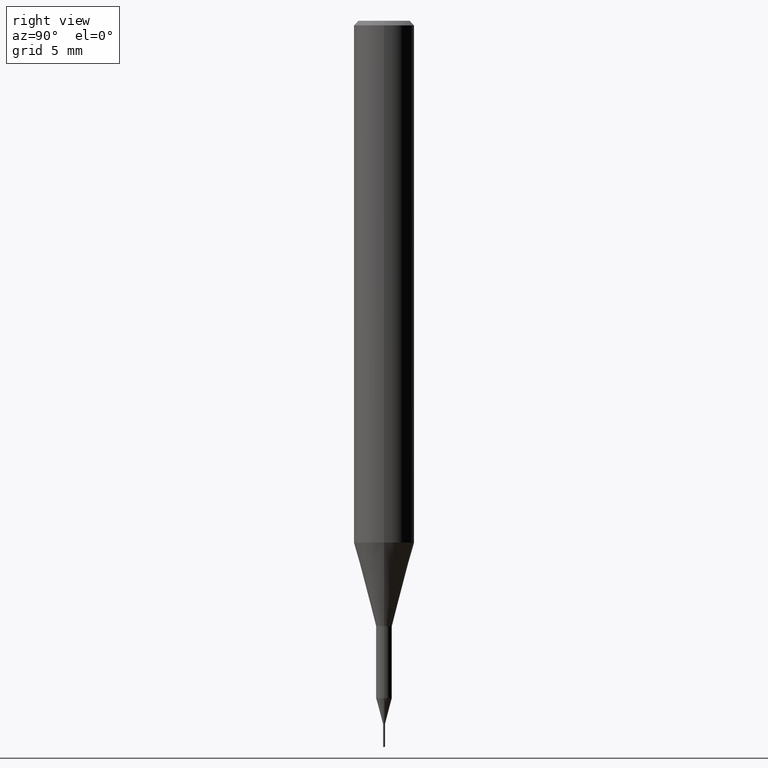
[diagram: clean part render]
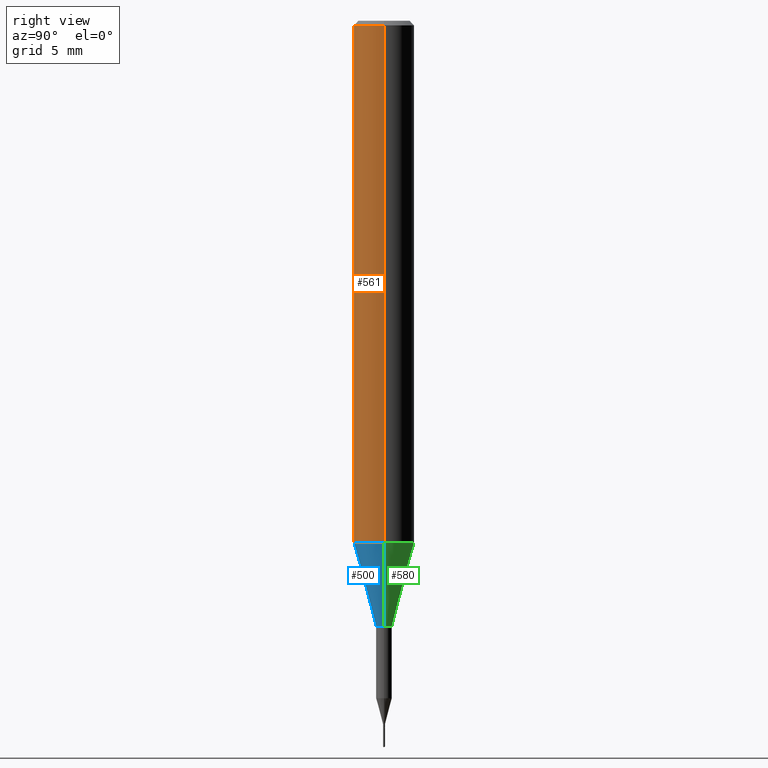
[diagram: same view with three faces highlighted in distinct colors, each labeled with its STEP entity id]
A machine part, right view with three faces highlighted in distinct colors.
Their STEP definitions:

[orange] entity #561 — the highlighted cylindrical surface (edge-blend (fillet) strip) has radius 1.5875 mm, axis along (-0, 0, 1).
#3 = DIRECTION ( 'NONE',  ( -2.445468806185136877E-29, 3.491481338843145188E-15, 1.000000000000000000 ) ) ;
#30 = EDGE_CURVE ( 'NONE', #222, #406, #556, .T. ) ;
#44 = DIRECTION ( 'NONE',  ( 1.000000000000000000, -6.982962677686266711E-15, 0.000000000000000000 ) ) ;
#82 = CIRCLE ( 'NONE', #517, 0.06250000000000012490 ) ;
#110 = AXIS2_PLACEMENT_3D ( 'NONE', #321, #548, #44 ) ;
#123 = EDGE_CURVE ( 'NONE', #406, #164, #299, .T. ) ;
#150 = VECTOR ( 'NONE', #345, 39.37007874015748143 ) ;
#152 = CARTESIAN_POINT ( 'NONE',  ( -0.06250000000000012490, -3.317607122755211895E-15, -1.077392650149939346 ) ) ;
#157 = CARTESIAN_POINT ( 'NONE',  ( 0.06250000000000000000, -4.691678049070463404E-16, -0.009375000000000058634 ) ) ;
#159 = ORIENTED_EDGE ( 'NONE', *, *, #123, .F. ) ;
#164 = VERTEX_POINT ( 'NONE', #157 ) ;
#165 = CARTESIAN_POINT ( 'NONE',  ( 0.06250000000000006939, -4.364351673553921624E-16, 3.047610484872463374E-30 ) ) ;
#209 = LINE ( 'NONE', #165, #150 ) ;
#217 = VERTEX_POINT ( 'NONE', #297 ) ;
#218 = CARTESIAN_POINT ( 'NONE',  ( 2.634730117954813298E-29, -3.761696332605275695E-15, -1.077392650149939346 ) ) ;
#222 = VERTEX_POINT ( 'NONE', #152 ) ;
#224 = CYLINDRICAL_SURFACE ( 'NONE', #578, 0.06250000000000006939 ) ;
#236 = DIRECTION ( 'NONE',  ( -2.445468806185136597E-29, 3.491481338843145583E-15, 1.000000000000000000 ) ) ;
#264 = DIRECTION ( 'NONE',  ( 1.000000000000000000, -6.982962677686264344E-15, 0.000000000000000000 ) ) ;
#286 = EDGE_CURVE ( 'NONE', #217, #164, #209, .T. ) ;
#297 = CARTESIAN_POINT ( 'NONE',  ( 0.06250000000000012490, -4.198131499960668153E-15, -1.077392650149939346 ) ) ;
#299 = CIRCLE ( 'NONE', #110, 0.06250000000000000000 ) ;
#314 = ORIENTED_EDGE ( 'NONE', *, *, #286, .T. ) ;
#321 = CARTESIAN_POINT ( 'NONE',  ( 2.292627005798580186E-31, -3.273263755165469568E-17, -0.009375000000000058634 ) ) ;
#343 = EDGE_LOOP ( 'NONE', ( #589, #411, #314, #159 ) ) ;
#345 = DIRECTION ( 'NONE',  ( -2.445468806185136877E-29, 3.491481338843145188E-15, 1.000000000000000000 ) ) ;
#350 = EDGE_CURVE ( 'NONE', #222, #217, #82, .T. ) ;
#372 = VECTOR ( 'NONE', #3, 39.37007874015748143 ) ;
#406 = VERTEX_POINT ( 'NONE', #537 ) ;
#411 = ORIENTED_EDGE ( 'NONE', *, *, #350, .T. ) ;
#414 = CARTESIAN_POINT ( 'NONE',  ( 0.000000000000000000, 0.000000000000000000, 0.000000000000000000 ) ) ;
#417 = FACE_OUTER_BOUND ( 'NONE', #343, .T. ) ;
#420 = DIRECTION ( 'NONE',  ( 1.000000000000000000, -6.982962677686266711E-15, 4.876176775795935793E-29 ) ) ;
#482 = DIRECTION ( 'NONE',  ( -2.445468806185136597E-29, 3.491481338843145583E-15, 1.000000000000000000 ) ) ;
#517 = AXIS2_PLACEMENT_3D ( 'NONE', #218, #482, #264 ) ;
#537 = CARTESIAN_POINT ( 'NONE',  ( -0.06250000000000000000, -1.453125275228401137E-15, -0.009375000000000058634 ) ) ;
#544 = CARTESIAN_POINT ( 'NONE',  ( -0.06250000000000006939, 4.440892098500631092E-16, -3.074334431409319267E-30 ) ) ;
#548 = DIRECTION ( 'NONE',  ( -2.445468806185136597E-29, 3.491481338843145583E-15, 1.000000000000000000 ) ) ;
#556 = LINE ( 'NONE', #544, #372 ) ;
#561 = ADVANCED_FACE ( 'NONE', ( #417 ), #224, .T. ) ;
#578 = AXIS2_PLACEMENT_3D ( 'NONE', #414, #236, #420 ) ;
#589 = ORIENTED_EDGE ( 'NONE', *, *, #30, .F. ) ;

[blue] entity #500 — the highlighted conical surface has half-angle 15 deg.
#2 = CARTESIAN_POINT ( 'NONE',  ( -0.06250000000000012490, -3.317607122755211895E-15, -1.077392650149939346 ) ) ;
#20 = VERTEX_POINT ( 'NONE', #454 ) ;
#42 = CONICAL_SURFACE ( 'NONE', #425, 0.06250000000000012490, 0.2617993877991501295 ) ;
#53 = CIRCLE ( 'NONE', #301, 0.01624999999999999709 ) ;
#55 = CARTESIAN_POINT ( 'NONE',  ( 2.634730117954813298E-29, -3.761696332605275695E-15, -1.077392650149939346 ) ) ;
#74 = DIRECTION ( 'NONE',  ( 0.2588190451025214611, 1.565188264969621573E-15, 0.9659258262890682012 ) ) ;
#82 = CIRCLE ( 'NONE', #517, 0.06250000000000012490 ) ;
#84 = VERTEX_POINT ( 'NONE', #237 ) ;
#98 = ORIENTED_EDGE ( 'NONE', *, *, #154, .F. ) ;
#104 = ORIENTED_EDGE ( 'NONE', *, *, #418, .T. ) ;
#152 = CARTESIAN_POINT ( 'NONE',  ( -0.06250000000000012490, -3.317607122755211895E-15, -1.077392650149939346 ) ) ;
#154 = EDGE_CURVE ( 'NONE', #20, #222, #458, .T. ) ;
#173 = LINE ( 'NONE', #214, #367 ) ;
#177 = ORIENTED_EDGE ( 'NONE', *, *, #350, .F. ) ;
#212 = DIRECTION ( 'NONE',  ( -2.445468806185136597E-29, 3.491481338843145583E-15, 1.000000000000000000 ) ) ;
#214 = CARTESIAN_POINT ( 'NONE',  ( 0.06250000000000012490, -4.198131499960668153E-15, -1.077392650149939346 ) ) ;
#217 = VERTEX_POINT ( 'NONE', #297 ) ;
#218 = CARTESIAN_POINT ( 'NONE',  ( 2.634730117954813298E-29, -3.761696332605275695E-15, -1.077392650149939346 ) ) ;
#222 = VERTEX_POINT ( 'NONE', #152 ) ;
#227 = FACE_OUTER_BOUND ( 'NONE', #243, .T. ) ;
#237 = CARTESIAN_POINT ( 'NONE',  ( 0.01624999999999999709, -4.477824817066334148E-15, -1.250000000000000000 ) ) ;
#243 = EDGE_LOOP ( 'NONE', ( #98, #538, #104, #177 ) ) ;
#264 = DIRECTION ( 'NONE',  ( 1.000000000000000000, -6.982962677686264344E-15, 0.000000000000000000 ) ) ;
#269 = DIRECTION ( 'NONE',  ( -2.445468806185136597E-29, 3.491481338843145583E-15, 1.000000000000000000 ) ) ;
#270 = VECTOR ( 'NONE', #386, 39.37007874015747433 ) ;
#297 = CARTESIAN_POINT ( 'NONE',  ( 0.06250000000000012490, -4.198131499960668153E-15, -1.077392650149939346 ) ) ;
#301 = AXIS2_PLACEMENT_3D ( 'NONE', #303, #212, #395 ) ;
#303 = CARTESIAN_POINT ( 'NONE',  ( 3.056836007731421306E-29, -4.364351673553932471E-15, -1.250000000000000000 ) ) ;
#310 = EDGE_CURVE ( 'NONE', #20, #84, #53, .T. ) ;
#350 = EDGE_CURVE ( 'NONE', #222, #217, #82, .T. ) ;
#367 = VECTOR ( 'NONE', #74, 39.37007874015747433 ) ;
#386 = DIRECTION ( 'NONE',  ( -0.2588190451025214611, 5.211531920934551042E-15, 0.9659258262890682012 ) ) ;
#395 = DIRECTION ( 'NONE',  ( 1.000000000000000000, -6.982962677686288799E-15, 0.000000000000000000 ) ) ;
#418 = EDGE_CURVE ( 'NONE', #84, #217, #173, .T. ) ;
#425 = AXIS2_PLACEMENT_3D ( 'NONE', #55, #269, #447 ) ;
#447 = DIRECTION ( 'NONE',  ( 1.000000000000000000, -6.982962677686264344E-15, 0.000000000000000000 ) ) ;
#454 = CARTESIAN_POINT ( 'NONE',  ( -0.01624999999999999709, -4.508686595745605419E-15, -1.250000000000000000 ) ) ;
#458 = LINE ( 'NONE', #2, #270 ) ;
#482 = DIRECTION ( 'NONE',  ( -2.445468806185136597E-29, 3.491481338843145583E-15, 1.000000000000000000 ) ) ;
#500 = ADVANCED_FACE ( 'NONE', ( #227 ), #42, .T. ) ;
#517 = AXIS2_PLACEMENT_3D ( 'NONE', #218, #482, #264 ) ;
#538 = ORIENTED_EDGE ( 'NONE', *, *, #310, .T. ) ;

[green] entity #580 — the highlighted conical surface has half-angle 15 deg.
#1 = DIRECTION ( 'NONE',  ( 1.000000000000000000, -6.982962677686264344E-15, 0.000000000000000000 ) ) ;
#2 = CARTESIAN_POINT ( 'NONE',  ( -0.06250000000000012490, -3.317607122755211895E-15, -1.077392650149939346 ) ) ;
#20 = VERTEX_POINT ( 'NONE', #454 ) ;
#52 = DIRECTION ( 'NONE',  ( -2.445468806185136597E-29, 3.491481338843145583E-15, 1.000000000000000000 ) ) ;
#73 = ORIENTED_EDGE ( 'NONE', *, *, #368, .T. ) ;
#74 = DIRECTION ( 'NONE',  ( 0.2588190451025214611, 1.565188264969621573E-15, 0.9659258262890682012 ) ) ;
#84 = VERTEX_POINT ( 'NONE', #237 ) ;
#119 = ORIENTED_EDGE ( 'NONE', *, *, #154, .T. ) ;
#152 = CARTESIAN_POINT ( 'NONE',  ( -0.06250000000000012490, -3.317607122755211895E-15, -1.077392650149939346 ) ) ;
#154 = EDGE_CURVE ( 'NONE', #20, #222, #458, .T. ) ;
#158 = AXIS2_PLACEMENT_3D ( 'NONE', #398, #480, #403 ) ;
#173 = LINE ( 'NONE', #214, #367 ) ;
#213 = ORIENTED_EDGE ( 'NONE', *, *, #543, .F. ) ;
#214 = CARTESIAN_POINT ( 'NONE',  ( 0.06250000000000012490, -4.198131499960668153E-15, -1.077392650149939346 ) ) ;
#217 = VERTEX_POINT ( 'NONE', #297 ) ;
#222 = VERTEX_POINT ( 'NONE', #152 ) ;
#237 = CARTESIAN_POINT ( 'NONE',  ( 0.01624999999999999709, -4.477824817066334148E-15, -1.250000000000000000 ) ) ;
#261 = EDGE_LOOP ( 'NONE', ( #73, #119, #213, #460 ) ) ;
#270 = VECTOR ( 'NONE', #386, 39.37007874015747433 ) ;
#297 = CARTESIAN_POINT ( 'NONE',  ( 0.06250000000000012490, -4.198131499960668153E-15, -1.077392650149939346 ) ) ;
#326 = FACE_OUTER_BOUND ( 'NONE', #261, .T. ) ;
#367 = VECTOR ( 'NONE', #74, 39.37007874015747433 ) ;
#368 = EDGE_CURVE ( 'NONE', #84, #20, #469, .T. ) ;
#386 = DIRECTION ( 'NONE',  ( -0.2588190451025214611, 5.211531920934551042E-15, 0.9659258262890682012 ) ) ;
#398 = CARTESIAN_POINT ( 'NONE',  ( 3.056836007731421306E-29, -4.364351673553932471E-15, -1.250000000000000000 ) ) ;
#403 = DIRECTION ( 'NONE',  ( 1.000000000000000000, -6.982962677686288799E-15, 0.000000000000000000 ) ) ;
#410 = CONICAL_SURFACE ( 'NONE', #442, 0.06250000000000012490, 0.2617993877991501295 ) ;
#418 = EDGE_CURVE ( 'NONE', #84, #217, #173, .T. ) ;
#442 = AXIS2_PLACEMENT_3D ( 'NONE', #453, #450, #1 ) ;
#448 = CIRCLE ( 'NONE', #496, 0.06250000000000012490 ) ;
#450 = DIRECTION ( 'NONE',  ( -2.445468806185136597E-29, 3.491481338843145583E-15, 1.000000000000000000 ) ) ;
#453 = CARTESIAN_POINT ( 'NONE',  ( 2.634730117954813298E-29, -3.761696332605275695E-15, -1.077392650149939346 ) ) ;
#454 = CARTESIAN_POINT ( 'NONE',  ( -0.01624999999999999709, -4.508686595745605419E-15, -1.250000000000000000 ) ) ;
#457 = CARTESIAN_POINT ( 'NONE',  ( 2.634730117954813298E-29, -3.761696332605275695E-15, -1.077392650149939346 ) ) ;
#458 = LINE ( 'NONE', #2, #270 ) ;
#460 = ORIENTED_EDGE ( 'NONE', *, *, #418, .F. ) ;
#469 = CIRCLE ( 'NONE', #158, 0.01624999999999999709 ) ;
#480 = DIRECTION ( 'NONE',  ( -2.445468806185136597E-29, 3.491481338843145583E-15, 1.000000000000000000 ) ) ;
#496 = AXIS2_PLACEMENT_3D ( 'NONE', #457, #52, #542 ) ;
#542 = DIRECTION ( 'NONE',  ( 1.000000000000000000, -6.982962677686264344E-15, 0.000000000000000000 ) ) ;
#543 = EDGE_CURVE ( 'NONE', #217, #222, #448, .T. ) ;
#580 = ADVANCED_FACE ( 'NONE', ( #326 ), #410, .T. ) ;